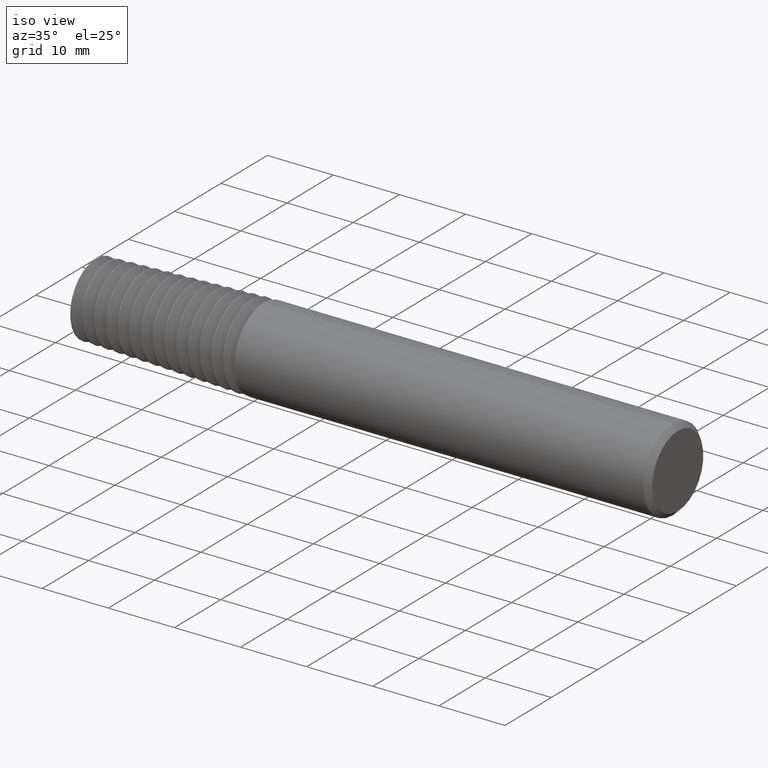
[diagram: clean part render]
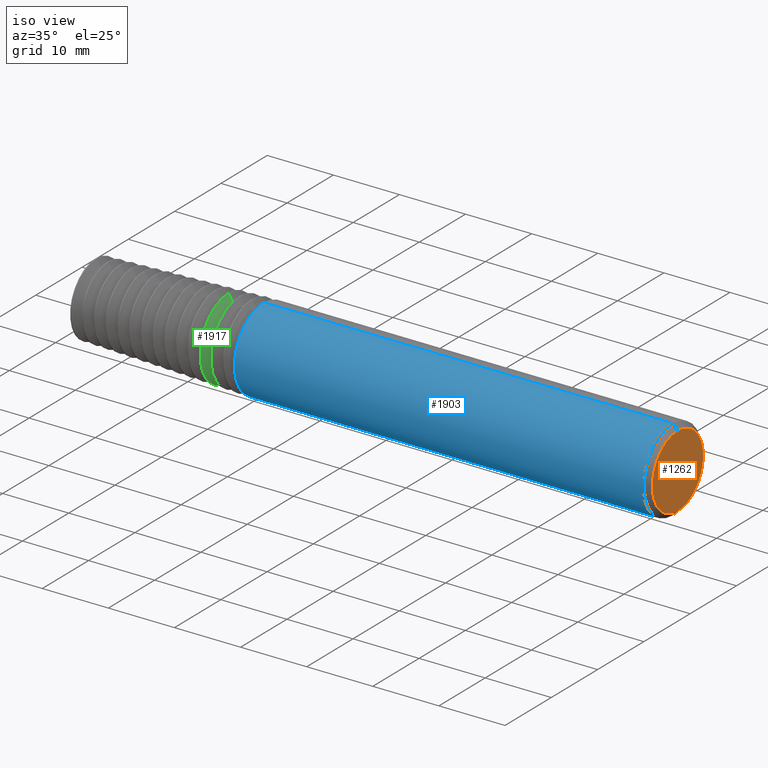
[diagram: same view with three faces highlighted in distinct colors, each labeled with its STEP entity id]
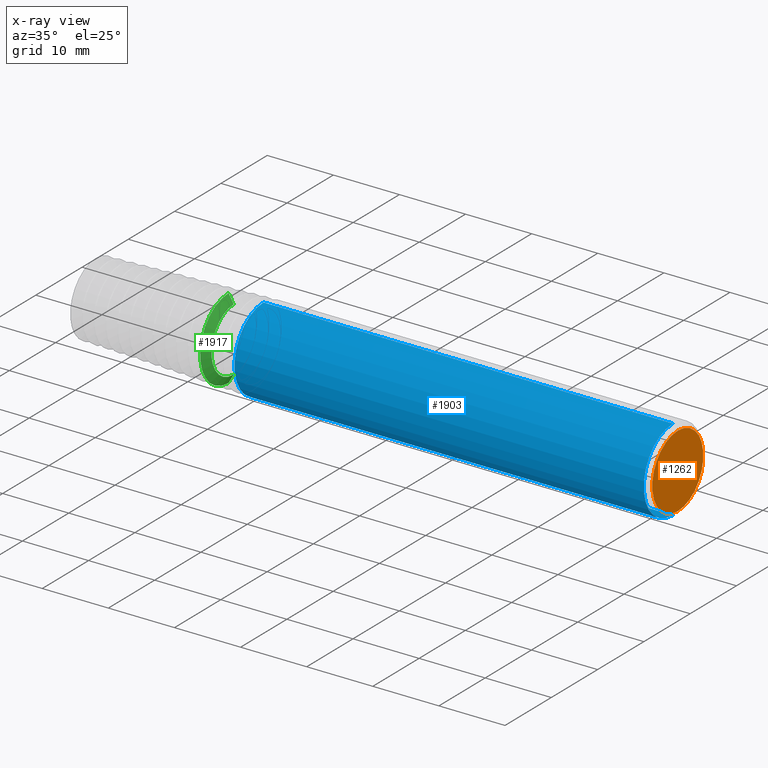
[diagram: x-ray of the same camera — body ghosted, the three highlighted faces saturated]
A machine part, iso view with three faces highlighted in distinct colors.
The next image is the same camera in x-ray (body ghosted, the three faces saturated) — at least one of them is partly hidden behind the body in this view.
Their STEP definitions:

[orange] entity #1262 — the highlighted planar face has unit normal (1, 0, 0).
#3 = CARTESIAN_POINT ( 'NONE',  ( 2.524999999999999911, 0.000000000000000000, 0.000000000000000000 ) ) ;
#316 = EDGE_LOOP ( 'NONE', ( #915, #2944 ) ) ;
#557 = EDGE_CURVE ( 'NONE', #2720, #1546, #566, .T. ) ;
#566 = CIRCLE ( 'NONE', #3608, 0.2168013999999997277 ) ;
#573 = CARTESIAN_POINT ( 'NONE',  ( 2.524999999999999911, 2.838748425478751491E-17, -0.2168013999999997277 ) ) ;
#861 = DIRECTION ( 'NONE',  ( 0.000000000000000000, 0.000000000000000000, -1.000000000000000000 ) ) ;
#880 = AXIS2_PLACEMENT_3D ( 'NONE', #3766, #3475, #1684 ) ;
#915 = ORIENTED_EDGE ( 'NONE', *, *, #557, .T. ) ;
#1220 = FACE_OUTER_BOUND ( 'NONE', #316, .T. ) ;
#1262 = ADVANCED_FACE ( 'NONE', ( #1220 ), #1520, .T. ) ;
#1480 = DIRECTION ( 'NONE',  ( 1.000000000000000000, 0.000000000000000000, 0.000000000000000000 ) ) ;
#1511 = EDGE_CURVE ( 'NONE', #1546, #2720, #2638, .T. ) ;
#1520 = PLANE ( 'NONE',  #2953 ) ;
#1546 = VERTEX_POINT ( 'NONE', #573 ) ;
#1684 = DIRECTION ( 'NONE',  ( 0.000000000000000000, 0.000000000000000000, -1.000000000000000000 ) ) ;
#2117 = CARTESIAN_POINT ( 'NONE',  ( 2.524999999999999911, -0.2468013999999999764, 0.000000000000000000 ) ) ;
#2638 = CIRCLE ( 'NONE', #880, 0.2168013999999997277 ) ;
#2720 = VERTEX_POINT ( 'NONE', #3112 ) ;
#2944 = ORIENTED_EDGE ( 'NONE', *, *, #1511, .T. ) ;
#2953 = AXIS2_PLACEMENT_3D ( 'NONE', #2117, #3585, #3308 ) ;
#3112 = CARTESIAN_POINT ( 'NONE',  ( 2.524999999999999911, 0.000000000000000000, 0.2168013999999997277 ) ) ;
#3308 = DIRECTION ( 'NONE',  ( 0.000000000000000000, 0.000000000000000000, -1.000000000000000000 ) ) ;
#3475 = DIRECTION ( 'NONE',  ( 1.000000000000000000, 0.000000000000000000, 0.000000000000000000 ) ) ;
#3585 = DIRECTION ( 'NONE',  ( 1.000000000000000000, 0.000000000000000000, 0.000000000000000000 ) ) ;
#3608 = AXIS2_PLACEMENT_3D ( 'NONE', #3, #1480, #861 ) ;
#3766 = CARTESIAN_POINT ( 'NONE',  ( 2.524999999999999911, 0.000000000000000000, 0.000000000000000000 ) ) ;

[blue] entity #1903 — the highlighted cylindrical surface (partial cylindrical patch) has radius 6.2688 mm, axis along (-1, -0, -0).
#70 = DIRECTION ( 'NONE',  ( -1.000000000000000000, -0.000000000000000000, -0.000000000000000000 ) ) ;
#102 = CARTESIAN_POINT ( 'NONE',  ( 2.495000000000000107, 0.000000000000000000, 0.2468013999999999764 ) ) ;
#250 = ORIENTED_EDGE ( 'NONE', *, *, #3650, .T. ) ;
#332 = CARTESIAN_POINT ( 'NONE',  ( 0.05715482854455054135, 0.000000000000000000, 0.2468013999999999764 ) ) ;
#359 = CARTESIAN_POINT ( 'NONE',  ( 0.05715482854455054135, 0.000000000000000000, 0.000000000000000000 ) ) ;
#373 = VECTOR ( 'NONE', #70, 39.37007874015748143 ) ;
#505 = ORIENTED_EDGE ( 'NONE', *, *, #2897, .T. ) ;
#602 = VERTEX_POINT ( 'NONE', #332 ) ;
#686 = LINE ( 'NONE', #1569, #1777 ) ;
#953 = DIRECTION ( 'NONE',  ( -1.000000000000000000, -0.000000000000000000, -0.000000000000000000 ) ) ;
#1014 = AXIS2_PLACEMENT_3D ( 'NONE', #359, #1588, #2740 ) ;
#1027 = LINE ( 'NONE', #2180, #373 ) ;
#1162 = DIRECTION ( 'NONE',  ( 0.000000000000000000, 0.000000000000000000, 1.000000000000000000 ) ) ;
#1541 = CARTESIAN_POINT ( 'NONE',  ( 2.495000000000000107, 0.000000000000000000, 0.000000000000000000 ) ) ;
#1569 = CARTESIAN_POINT ( 'NONE',  ( 0.000000000000000000, 0.000000000000000000, 0.2468013999999999764 ) ) ;
#1588 = DIRECTION ( 'NONE',  ( -1.000000000000000000, 0.000000000000000000, 0.000000000000000000 ) ) ;
#1650 = EDGE_CURVE ( 'NONE', #2697, #2970, #1027, .T. ) ;
#1774 = AXIS2_PLACEMENT_3D ( 'NONE', #1541, #953, #2410 ) ;
#1777 = VECTOR ( 'NONE', #3175, 39.37007874015748143 ) ;
#1814 = ORIENTED_EDGE ( 'NONE', *, *, #1650, .F. ) ;
#1903 = ADVANCED_FACE ( 'NONE', ( #3481 ), #2881, .T. ) ;
#2025 = CARTESIAN_POINT ( 'NONE',  ( 0.000000000000000000, 0.000000000000000000, 0.000000000000000000 ) ) ;
#2071 = EDGE_CURVE ( 'NONE', #2970, #602, #2652, .T. ) ;
#2134 = VERTEX_POINT ( 'NONE', #102 ) ;
#2180 = CARTESIAN_POINT ( 'NONE',  ( 0.000000000000000000, 3.022445445350855914E-17, -0.2468013999999999764 ) ) ;
#2258 = CARTESIAN_POINT ( 'NONE',  ( 0.05715482854455054135, 3.022445445350855914E-17, -0.2468013999999999764 ) ) ;
#2410 = DIRECTION ( 'NONE',  ( 0.000000000000000000, 0.000000000000000000, -1.000000000000000000 ) ) ;
#2446 = CARTESIAN_POINT ( 'NONE',  ( 2.495000000000000107, 3.022445445350855914E-17, -0.2468013999999999764 ) ) ;
#2652 = CIRCLE ( 'NONE', #1014, 0.2468013999999999764 ) ;
#2697 = VERTEX_POINT ( 'NONE', #2446 ) ;
#2740 = DIRECTION ( 'NONE',  ( 0.000000000000000000, 0.000000000000000000, -1.000000000000000000 ) ) ;
#2754 = AXIS2_PLACEMENT_3D ( 'NONE', #2025, #2859, #1162 ) ;
#2859 = DIRECTION ( 'NONE',  ( -1.000000000000000000, -0.000000000000000000, -0.000000000000000000 ) ) ;
#2881 = CYLINDRICAL_SURFACE ( 'NONE', #2754, 0.2468013999999999764 ) ;
#2897 = EDGE_CURVE ( 'NONE', #2134, #602, #686, .T. ) ;
#2970 = VERTEX_POINT ( 'NONE', #2258 ) ;
#3129 = ORIENTED_EDGE ( 'NONE', *, *, #2071, .F. ) ;
#3175 = DIRECTION ( 'NONE',  ( -1.000000000000000000, -0.000000000000000000, -0.000000000000000000 ) ) ;
#3178 = EDGE_LOOP ( 'NONE', ( #1814, #250, #505, #3129 ) ) ;
#3350 = CIRCLE ( 'NONE', #1774, 0.2468013999999999764 ) ;
#3481 = FACE_OUTER_BOUND ( 'NONE', #3178, .T. ) ;
#3650 = EDGE_CURVE ( 'NONE', #2697, #2134, #3350, .T. ) ;

[green] entity #1917 — the highlighted conical surface has half-angle 60.25 deg.
#111 = DIRECTION ( 'NONE',  ( 0.000000000000000000, 0.000000000000000000, -1.000000000000000000 ) ) ;
#115 = AXIS2_PLACEMENT_3D ( 'NONE', #2674, #1844, #111 ) ;
#288 = AXIS2_PLACEMENT_3D ( 'NONE', #3477, #867, #575 ) ;
#330 = VERTEX_POINT ( 'NONE', #2741 ) ;
#388 = DIRECTION ( 'NONE',  ( -0.4962165036752027025, 1.063236899187658737E-16, -0.8681988144891453762 ) ) ;
#473 = VECTOR ( 'NONE', #388, 39.37007874015748143 ) ;
#541 = CARTESIAN_POINT ( 'NONE',  ( -0.1202521161801318322, 2.317035945716407180E-17, 0.1891350816927916956 ) ) ;
#575 = DIRECTION ( 'NONE',  ( 0.000000000000000000, 0.000000000000000000, -1.000000000000000000 ) ) ;
#603 = DIRECTION ( 'NONE',  ( 0.000000000000000000, 0.000000000000000000, 1.000000000000000000 ) ) ;
#629 = CARTESIAN_POINT ( 'NONE',  ( -0.1504200503015444002, 2.962641277120480077E-17, -0.2419180190715548573 ) ) ;
#867 = DIRECTION ( 'NONE',  ( 1.000000000000000000, -0.000000000000000000, -0.000000000000000000 ) ) ;
#1085 = VECTOR ( 'NONE', #3600, 39.37007874015748143 ) ;
#1225 = EDGE_CURVE ( 'NONE', #3375, #330, #1266, .T. ) ;
#1258 = CARTESIAN_POINT ( 'NONE',  ( -0.1504200503015444002, 0.000000000000000000, 0.2419180190715548573 ) ) ;
#1266 = CIRCLE ( 'NONE', #288, 0.1891350816927916956 ) ;
#1287 = EDGE_CURVE ( 'NONE', #330, #3647, #3269, .T. ) ;
#1356 = EDGE_CURVE ( 'NONE', #3375, #3227, #2432, .T. ) ;
#1746 = DIRECTION ( 'NONE',  ( -1.000000000000000000, 0.000000000000000000, 0.000000000000000000 ) ) ;
#1820 = ORIENTED_EDGE ( 'NONE', *, *, #1356, .T. ) ;
#1844 = DIRECTION ( 'NONE',  ( 1.000000000000000000, -0.000000000000000000, -0.000000000000000000 ) ) ;
#1913 = CARTESIAN_POINT ( 'NONE',  ( -0.1504200503015444002, 2.962641277120480077E-17, -0.2419180190715548573 ) ) ;
#1917 = ADVANCED_FACE ( 'NONE', ( #3787 ), #3689, .T. ) ;
#2363 = EDGE_LOOP ( 'NONE', ( #3169, #3396, #1820, #2826 ) ) ;
#2432 = LINE ( 'NONE', #1258, #1085 ) ;
#2437 = CIRCLE ( 'NONE', #115, 0.2419180190715548573 ) ;
#2674 = CARTESIAN_POINT ( 'NONE',  ( -0.1504200503015444002, 0.000000000000000000, 0.000000000000000000 ) ) ;
#2705 = AXIS2_PLACEMENT_3D ( 'NONE', #2934, #1746, #603 ) ;
#2741 = CARTESIAN_POINT ( 'NONE',  ( -0.1202521161801318322, 0.000000000000000000, -0.1891350816927916956 ) ) ;
#2826 = ORIENTED_EDGE ( 'NONE', *, *, #3670, .T. ) ;
#2934 = CARTESIAN_POINT ( 'NONE',  ( -0.1504200503015444002, 0.000000000000000000, 0.000000000000000000 ) ) ;
#3169 = ORIENTED_EDGE ( 'NONE', *, *, #1287, .F. ) ;
#3227 = VERTEX_POINT ( 'NONE', #3332 ) ;
#3269 = LINE ( 'NONE', #629, #473 ) ;
#3332 = CARTESIAN_POINT ( 'NONE',  ( -0.1504200503015444002, 0.000000000000000000, 0.2419180190715548573 ) ) ;
#3375 = VERTEX_POINT ( 'NONE', #541 ) ;
#3396 = ORIENTED_EDGE ( 'NONE', *, *, #1225, .F. ) ;
#3477 = CARTESIAN_POINT ( 'NONE',  ( -0.1202521161801318322, 0.000000000000000000, 0.000000000000000000 ) ) ;
#3600 = DIRECTION ( 'NONE',  ( -0.4962165036752027025, 0.000000000000000000, 0.8681988144891453762 ) ) ;
#3647 = VERTEX_POINT ( 'NONE', #1913 ) ;
#3670 = EDGE_CURVE ( 'NONE', #3227, #3647, #2437, .T. ) ;
#3689 = CONICAL_SURFACE ( 'NONE', #2705, 0.2419180190715548573, 1.051560874326589845 ) ;
#3787 = FACE_OUTER_BOUND ( 'NONE', #2363, .T. ) ;